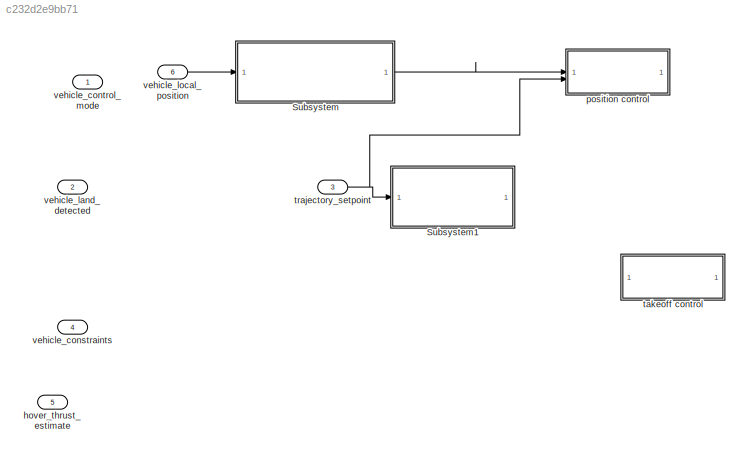
MODEL slx_c232d2e9bb71
KIND model
CONFIG AbsTol = auto
CONFIG EnableMultiTasking = off
CONFIG FixedStep = auto
CONFIG MaxStep = auto
CONFIG MinStep = auto
CONFIG RelTol = 1e-3
CONFIG SampleTimeConstraint = Unconstrained
CONFIG SolverName = VariableStepAuto
CONFIG StartTime = 0.0
CONFIG StopTime = 10.0
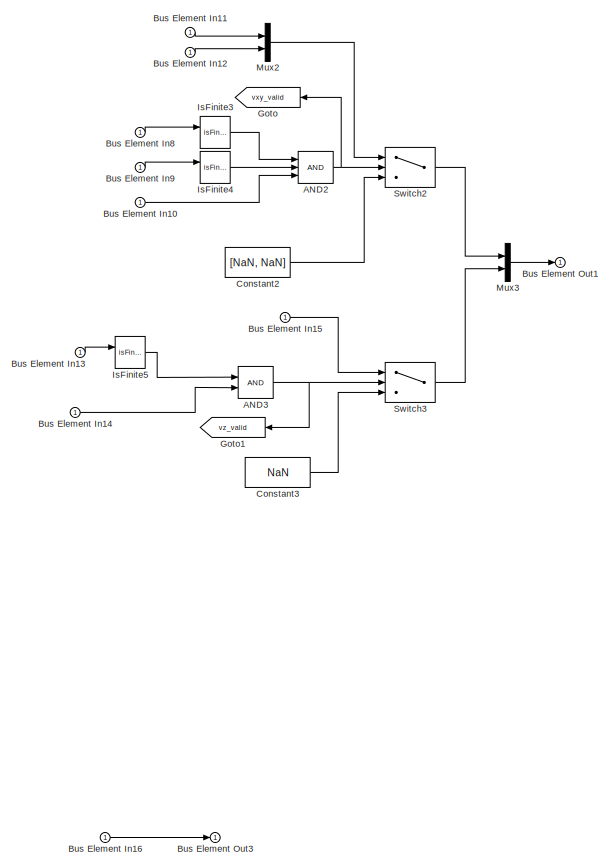
[diagram: Subsystem - part 1/2, right side, full height]
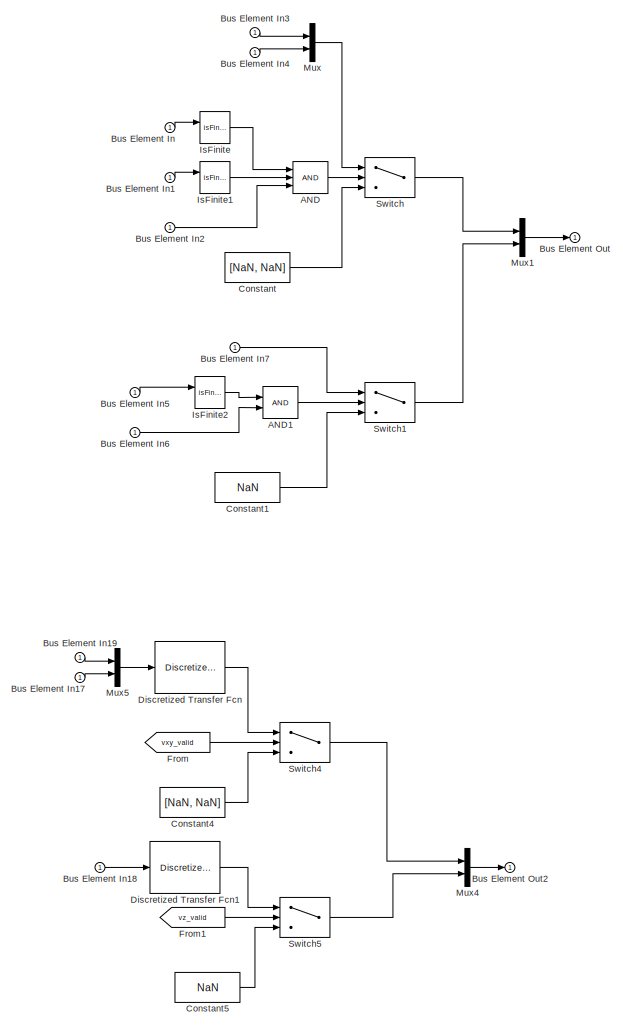
[diagram: Subsystem - part 2/2, left side, full height]
BLOCK [SubSystem] Subsystem
BLOCK [Logic] Subsystem/AND
  AllPortsSameDT = off
  IconShape = distinctive
  Inputs = 3
  OutDataTypeStr = boolean
BLOCK [Logic] Subsystem/AND1
  AllPortsSameDT = off
  IconShape = distinctive
  OutDataTypeStr = boolean
BLOCK [Logic] Subsystem/AND2
  AllPortsSameDT = off
  IconShape = distinctive
  Inputs = 3
  OutDataTypeStr = boolean
BLOCK [Logic] Subsystem/AND3
  AllPortsSameDT = off
  IconShape = distinctive
  OutDataTypeStr = boolean
BLOCK [Inport] Subsystem/Bus Element In
BLOCK [Inport] Subsystem/Bus Element In1
BLOCK [Inport] Subsystem/Bus Element In10
BLOCK [Inport] Subsystem/Bus Element In11
BLOCK [Inport] Subsystem/Bus Element In12
BLOCK [Inport] Subsystem/Bus Element In13
BLOCK [Inport] Subsystem/Bus Element In14
BLOCK [Inport] Subsystem/Bus Element In15
BLOCK [Inport] Subsystem/Bus Element In16
BLOCK [Inport] Subsystem/Bus Element In17
BLOCK [Inport] Subsystem/Bus Element In18
BLOCK [Inport] Subsystem/Bus Element In19
BLOCK [Inport] Subsystem/Bus Element In2
BLOCK [Inport] Subsystem/Bus Element In3
BLOCK [Inport] Subsystem/Bus Element In4
BLOCK [Inport] Subsystem/Bus Element In5
BLOCK [Inport] Subsystem/Bus Element In6
BLOCK [Inport] Subsystem/Bus Element In7
BLOCK [Inport] Subsystem/Bus Element In8
BLOCK [Inport] Subsystem/Bus Element In9
BLOCK [Outport] Subsystem/Bus Element Out
BLOCK [Outport] Subsystem/Bus Element Out1
BLOCK [Outport] Subsystem/Bus Element Out2
BLOCK [Outport] Subsystem/Bus Element Out3
BLOCK [Constant] Subsystem/Constant
  OutDataTypeStr = single
  Value = [NaN, NaN]
BLOCK [Constant] Subsystem/Constant1
  OutDataTypeStr = single
  Value = NaN
BLOCK [Constant] Subsystem/Constant2
  OutDataTypeStr = single
  Value = [NaN, NaN]
BLOCK [Constant] Subsystem/Constant3
  OutDataTypeStr = single
  Value = NaN
BLOCK [Constant] Subsystem/Constant4
  OutDataTypeStr = single
  Value = [NaN, NaN]
BLOCK [Constant] Subsystem/Constant5
  OutDataTypeStr = single
  Value = NaN
BLOCK [Reference] Subsystem/Discretized Transfer Fcn  REF=discretizing/Discretized  (lib defined in mdl_5048aa1cd587)
Transfer Fcn
  SourceBlock = discretizing/Discretized\nTransfer Fcn
  SourceType = DiscretizedTransferFcn
BLOCK [Reference] Subsystem/Discretized Transfer Fcn1  REF=discretizing/Discretized  (lib defined in mdl_5048aa1cd587)
Transfer Fcn
  SourceBlock = discretizing/Discretized\nTransfer Fcn
  SourceType = DiscretizedTransferFcn
BLOCK [From] Subsystem/From
  GotoTag = vxy_valid
  NameLocation = top
BLOCK [From] Subsystem/From1
  GotoTag = vz_valid
  NameLocation = top
BLOCK [Goto] Subsystem/Goto
  GotoTag = vxy_valid
  NameLocation = top
BLOCK [Goto] Subsystem/Goto1
  GotoTag = vz_valid
  NameLocation = top
BLOCK [RelationalOperator] Subsystem/IsFinite
  InputSameDT = off
  Operator = isFinite
  OutDataTypeStr = boolean
  RndMeth = Simplest
BLOCK [RelationalOperator] Subsystem/IsFinite1
  InputSameDT = off
  Operator = isFinite
  OutDataTypeStr = boolean
  RndMeth = Simplest
BLOCK [RelationalOperator] Subsystem/IsFinite2
  InputSameDT = off
  Operator = isFinite
  OutDataTypeStr = boolean
  RndMeth = Simplest
BLOCK [RelationalOperator] Subsystem/IsFinite3
  InputSameDT = off
  Operator = isFinite
  OutDataTypeStr = boolean
  RndMeth = Simplest
BLOCK [RelationalOperator] Subsystem/IsFinite4
  InputSameDT = off
  Operator = isFinite
  OutDataTypeStr = boolean
  RndMeth = Simplest
BLOCK [RelationalOperator] Subsystem/IsFinite5
  InputSameDT = off
  Operator = isFinite
  OutDataTypeStr = boolean
  RndMeth = Simplest
BLOCK [Mux] Subsystem/Mux
  DisplayOption = bar
  Inputs = 2
BLOCK [Mux] Subsystem/Mux1
  DisplayOption = bar
  Inputs = 2
BLOCK [Mux] Subsystem/Mux2
  DisplayOption = bar
  Inputs = 2
BLOCK [Mux] Subsystem/Mux3
  DisplayOption = bar
  Inputs = 2
BLOCK [Mux] Subsystem/Mux4
  DisplayOption = bar
  Inputs = 2
BLOCK [Mux] Subsystem/Mux5
  DisplayOption = bar
  Inputs = 2
BLOCK [Switch] Subsystem/Switch
  Criteria = u2 > Threshold
  InputSameDT = off
  SaturateOnIntegerOverflow = off
BLOCK [Switch] Subsystem/Switch1
  Criteria = u2 > Threshold
  InputSameDT = off
  SaturateOnIntegerOverflow = off
BLOCK [Switch] Subsystem/Switch2
  Criteria = u2 > Threshold
  InputSameDT = off
  SaturateOnIntegerOverflow = off
BLOCK [Switch] Subsystem/Switch3
  Criteria = u2 > Threshold
  InputSameDT = off
  SaturateOnIntegerOverflow = off
BLOCK [Switch] Subsystem/Switch4
  Criteria = u2 > Threshold
  InputSameDT = off
  SaturateOnIntegerOverflow = off
BLOCK [Switch] Subsystem/Switch5
  Criteria = u2 > Threshold
  InputSameDT = off
  SaturateOnIntegerOverflow = off
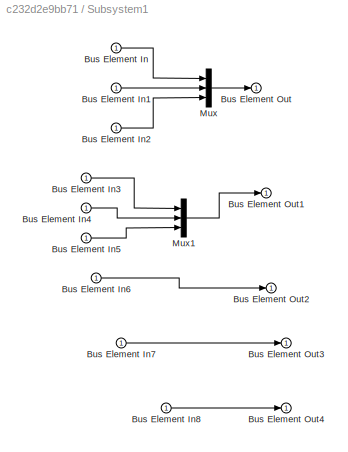
BLOCK [SubSystem] Subsystem1
BLOCK [Inport] Subsystem1/Bus Element In
BLOCK [Inport] Subsystem1/Bus Element In1
BLOCK [Inport] Subsystem1/Bus Element In2
BLOCK [Inport] Subsystem1/Bus Element In3
BLOCK [Inport] Subsystem1/Bus Element In4
BLOCK [Inport] Subsystem1/Bus Element In5
BLOCK [Inport] Subsystem1/Bus Element In6
BLOCK [Inport] Subsystem1/Bus Element In7
BLOCK [Inport] Subsystem1/Bus Element In8
BLOCK [Outport] Subsystem1/Bus Element Out
BLOCK [Outport] Subsystem1/Bus Element Out1
BLOCK [Outport] Subsystem1/Bus Element Out2
BLOCK [Outport] Subsystem1/Bus Element Out3
BLOCK [Outport] Subsystem1/Bus Element Out4
BLOCK [Mux] Subsystem1/Mux
  DisplayOption = bar
  Inputs = 3
BLOCK [Mux] Subsystem1/Mux1
  DisplayOption = bar
  Inputs = 3
BLOCK [Inport] hover_thrust_estimate
  OutDataTypeStr = Bus: hover_thrust_estimate_s
  Port = 5
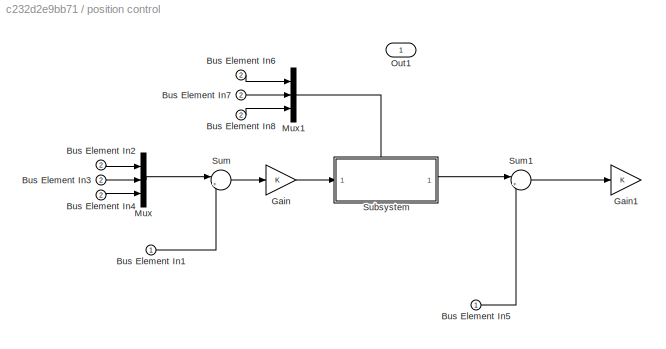
BLOCK [SubSystem] position control
BLOCK [Inport] position control/Bus Element In1
BLOCK [Inport] position control/Bus Element In2
  Port = 2
BLOCK [Inport] position control/Bus Element In3
  Port = 2
BLOCK [Inport] position control/Bus Element In4
  Port = 2
BLOCK [Inport] position control/Bus Element In5
BLOCK [Inport] position control/Bus Element In6
  Port = 2
BLOCK [Inport] position control/Bus Element In7
  Port = 2
BLOCK [Inport] position control/Bus Element In8
  Port = 2
BLOCK [Gain] position control/Gain
BLOCK [Gain] position control/Gain1
BLOCK [Mux] position control/Mux
  DisplayOption = bar
  Inputs = 3
BLOCK [Mux] position control/Mux1
  DisplayOption = bar
  Inputs = 3
BLOCK [Outport] position control/Out1
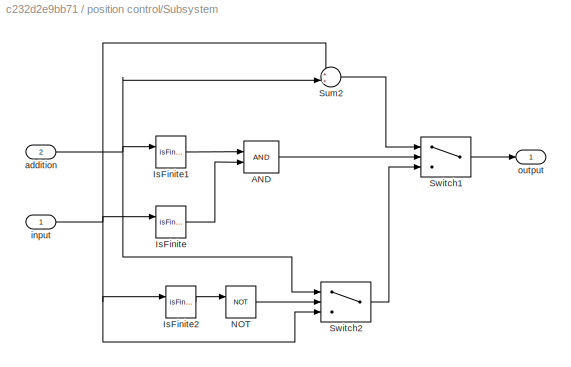
BLOCK [SubSystem] position control/Subsystem
  PortSchema = {"entries":[{"content":{"sides":[{"content":{"connectorIds":["In1"]},"type":"ConnectorPlacement.EquallySpacedRectSide","uuid":"82b10360-78fc-4139-a0e9-fc27f0214107"},{"content":{"connectorIds":["Out1"],"side":"RIGHT"},"type":"ConnectorPlacement.EquallySpacedRectSide","uuid":"af08122a-1f6d-4abf-8c9e-b2814fc8b6d4"},{"content":{"connectorIds":["In2"],"side":"TOP"},"type":"ConnectorPlacement.EquallySp...<+245ch>
BLOCK [Logic] position control/Subsystem/AND
  AllPortsSameDT = off
  IconShape = distinctive
  OutDataTypeStr = boolean
BLOCK [RelationalOperator] position control/Subsystem/IsFinite
  InputSameDT = off
  Operator = isFinite
  OutDataTypeStr = boolean
  RndMeth = Simplest
BLOCK [RelationalOperator] position control/Subsystem/IsFinite1
  InputSameDT = off
  Operator = isFinite
  OutDataTypeStr = boolean
  RndMeth = Simplest
BLOCK [RelationalOperator] position control/Subsystem/IsFinite2
  InputSameDT = off
  Operator = isFinite
  OutDataTypeStr = boolean
  RndMeth = Simplest
BLOCK [Logic] position control/Subsystem/NOT
  AllPortsSameDT = off
  IconShape = distinctive
  Operator = NOT
  OutDataTypeStr = boolean
BLOCK [Sum] position control/Subsystem/Sum2
  Inputs = ++|
BLOCK [Switch] position control/Subsystem/Switch1
  Criteria = u2 > Threshold
  InputSameDT = off
  SaturateOnIntegerOverflow = off
BLOCK [Switch] position control/Subsystem/Switch2
  Criteria = u2 > Threshold
  InputSameDT = off
  SaturateOnIntegerOverflow = off
BLOCK [Inport] position control/Subsystem/addition
  Port = 2
BLOCK [Inport] position control/Subsystem/input
BLOCK [Outport] position control/Subsystem/output
BLOCK [Sum] position control/Sum
  Inputs = |+-
BLOCK [Sum] position control/Sum1
  Inputs = |+-
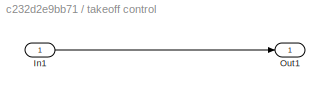
BLOCK [SubSystem] takeoff control
BLOCK [Inport] takeoff control/In1
BLOCK [Outport] takeoff control/Out1
BLOCK [Inport] trajectory_setpoint
  OutDataTypeStr = Bus: trajectory_setpoint_s
  Port = 3
BLOCK [Inport] vehicle_constraints
  OutDataTypeStr = Bus: vehicle_constraints
  Port = 4
BLOCK [Inport] vehicle_control_mode
  OutDataTypeStr = Bus:vehicle_control_mode_s
BLOCK [Inport] vehicle_land_detected
  OutDataTypeStr = Bus: vehicle_land_detected_s
  Port = 2
BLOCK [Inport] vehicle_local_position
  OutDataTypeStr = Bus:vehicle_local_position_s
  Port = 6
LINE Subsystem/AND1:1 -> Subsystem/Switch1:2
NET Subsystem/AND2:1 -> Subsystem/Goto:1, Subsystem/Switch2:2
NET Subsystem/AND3:1 -> Subsystem/Goto1:1, Subsystem/Switch3:2
LINE Subsystem/AND:1 -> Subsystem/Switch:2
LINE Subsystem/Bus Element In10:1 -> Subsystem/AND2:3
LINE Subsystem/Bus Element In11:1 -> Subsystem/Mux2:1
LINE Subsystem/Bus Element In12:1 -> Subsystem/Mux2:2
LINE Subsystem/Bus Element In13:1 -> Subsystem/IsFinite5:1
LINE Subsystem/Bus Element In14:1 -> Subsystem/AND3:2
LINE Subsystem/Bus Element In15:1 -> Subsystem/Switch3:1
LINE Subsystem/Bus Element In16:1 -> Subsystem/Bus Element Out3:1
LINE Subsystem/Bus Element In17:1 -> Subsystem/Mux5:2
LINE Subsystem/Bus Element In18:1 -> Subsystem/Discretized Transfer Fcn1:1
LINE Subsystem/Bus Element In19:1 -> Subsystem/Mux5:1
LINE Subsystem/Bus Element In1:1 -> Subsystem/IsFinite1:1
LINE Subsystem/Bus Element In2:1 -> Subsystem/AND:3
LINE Subsystem/Bus Element In3:1 -> Subsystem/Mux:1
LINE Subsystem/Bus Element In4:1 -> Subsystem/Mux:2
LINE Subsystem/Bus Element In5:1 -> Subsystem/IsFinite2:1
LINE Subsystem/Bus Element In6:1 -> Subsystem/AND1:2
LINE Subsystem/Bus Element In7:1 -> Subsystem/Switch1:1
LINE Subsystem/Bus Element In8:1 -> Subsystem/IsFinite3:1
LINE Subsystem/Bus Element In9:1 -> Subsystem/IsFinite4:1
LINE Subsystem/Bus Element In:1 -> Subsystem/IsFinite:1
LINE Subsystem/Constant1:1 -> Subsystem/Switch1:3
LINE Subsystem/Constant2:1 -> Subsystem/Switch2:3
LINE Subsystem/Constant3:1 -> Subsystem/Switch3:3
LINE Subsystem/Constant4:1 -> Subsystem/Switch4:3
LINE Subsystem/Constant5:1 -> Subsystem/Switch5:3
LINE Subsystem/Constant:1 -> Subsystem/Switch:3
LINE Subsystem/Discretized Transfer Fcn1:1 -> Subsystem/Switch5:1
LINE Subsystem/Discretized Transfer Fcn:1 -> Subsystem/Switch4:1
LINE Subsystem/From1:1 -> Subsystem/Switch5:2
LINE Subsystem/From:1 -> Subsystem/Switch4:2
LINE Subsystem/IsFinite1:1 -> Subsystem/AND:2
LINE Subsystem/IsFinite2:1 -> Subsystem/AND1:1
LINE Subsystem/IsFinite3:1 -> Subsystem/AND2:1
LINE Subsystem/IsFinite4:1 -> Subsystem/AND2:2
LINE Subsystem/IsFinite5:1 -> Subsystem/AND3:1
LINE Subsystem/IsFinite:1 -> Subsystem/AND:1
LINE Subsystem/Mux1:1 -> Subsystem/Bus Element Out:1
LINE Subsystem/Mux2:1 -> Subsystem/Switch2:1
LINE Subsystem/Mux3:1 -> Subsystem/Bus Element Out1:1
LINE Subsystem/Mux4:1 -> Subsystem/Bus Element Out2:1
LINE Subsystem/Mux5:1 -> Subsystem/Discretized Transfer Fcn:1
LINE Subsystem/Mux:1 -> Subsystem/Switch:1
LINE Subsystem/Switch1:1 -> Subsystem/Mux1:2
LINE Subsystem/Switch2:1 -> Subsystem/Mux3:1
LINE Subsystem/Switch3:1 -> Subsystem/Mux3:2
LINE Subsystem/Switch4:1 -> Subsystem/Mux4:1
LINE Subsystem/Switch5:1 -> Subsystem/Mux4:2
LINE Subsystem/Switch:1 -> Subsystem/Mux1:1
LINE Subsystem1/Bus Element In1:1 -> Subsystem1/Mux:2
LINE Subsystem1/Bus Element In2:1 -> Subsystem1/Mux:3
LINE Subsystem1/Bus Element In3:1 -> Subsystem1/Mux1:1
LINE Subsystem1/Bus Element In4:1 -> Subsystem1/Mux1:2
LINE Subsystem1/Bus Element In5:1 -> Subsystem1/Mux1:3
LINE Subsystem1/Bus Element In6:1 -> Subsystem1/Bus Element Out2:1
LINE Subsystem1/Bus Element In7:1 -> Subsystem1/Bus Element Out3:1
LINE Subsystem1/Bus Element In8:1 -> Subsystem1/Bus Element Out4:1
LINE Subsystem1/Bus Element In:1 -> Subsystem1/Mux:1
LINE Subsystem1/Mux1:1 -> Subsystem1/Bus Element Out1:1
LINE Subsystem1/Mux:1 -> Subsystem1/Bus Element Out:1
LINE Subsystem:1 -> position control:1
LINE position control/Bus Element In1:1 -> position control/Sum:2
LINE position control/Bus Element In2:1 -> position control/Mux:1
LINE position control/Bus Element In3:1 -> position control/Mux:2
LINE position control/Bus Element In4:1 -> position control/Mux:3
LINE position control/Bus Element In5:1 -> position control/Sum1:2
LINE position control/Bus Element In6:1 -> position control/Mux1:1
LINE position control/Bus Element In7:1 -> position control/Mux1:2
LINE position control/Bus Element In8:1 -> position control/Mux1:3
LINE position control/Gain:1 -> position control/Subsystem:1
LINE position control/Mux1:1 -> position control/Subsystem:2
LINE position control/Mux:1 -> position control/Sum:1
LINE position control/Subsystem/AND:1 -> position control/Subsystem/Switch1:2
LINE position control/Subsystem/IsFinite1:1 -> position control/Subsystem/AND:1
LINE position control/Subsystem/IsFinite2:1 -> position control/Subsystem/NOT:1
LINE position control/Subsystem/IsFinite:1 -> position control/Subsystem/AND:2
LINE position control/Subsystem/NOT:1 -> position control/Subsystem/Switch2:2
LINE position control/Subsystem/Sum2:1 -> position control/Subsystem/Switch1:1
LINE position control/Subsystem/Switch1:1 -> position control/Subsystem/output:1
LINE position control/Subsystem/Switch2:1 -> position control/Subsystem/Switch1:3
NET position control/Subsystem/addition:1 -> position control/Subsystem/IsFinite1:1, position control/Subsystem/Sum2:2, position control/Subsystem/Switch2:1
NET position control/Subsystem/input:1 -> position control/Subsystem/IsFinite2:1, position control/Subsystem/IsFinite:1, position control/Subsystem/Sum2:1, position control/Subsystem/Switch2:3
LINE position control/Subsystem:1 -> position control/Sum1:1
LINE position control/Sum1:1 -> position control/Gain1:1
LINE position control/Sum:1 -> position control/Gain:1
LINE takeoff control/In1:1 -> takeoff control/Out1:1
NET trajectory_setpoint:1 -> Subsystem1:1, position control:2
LINE vehicle_local_position:1 -> Subsystem:1
note: NET lines group one-source signal fan-out (src -> all destinations, sorted); 1:1 wires keep LINE
